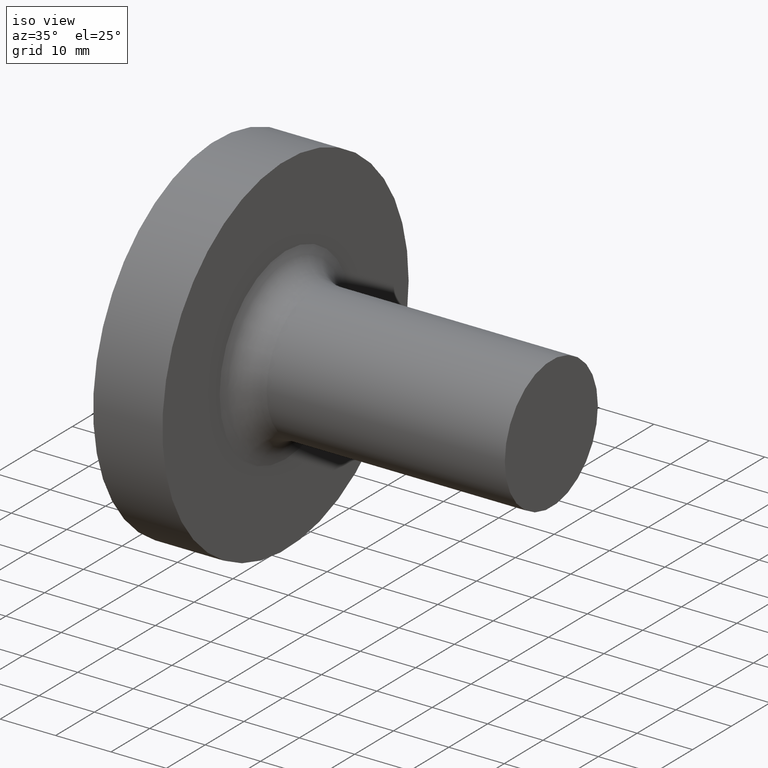
[diagram: clean part render]
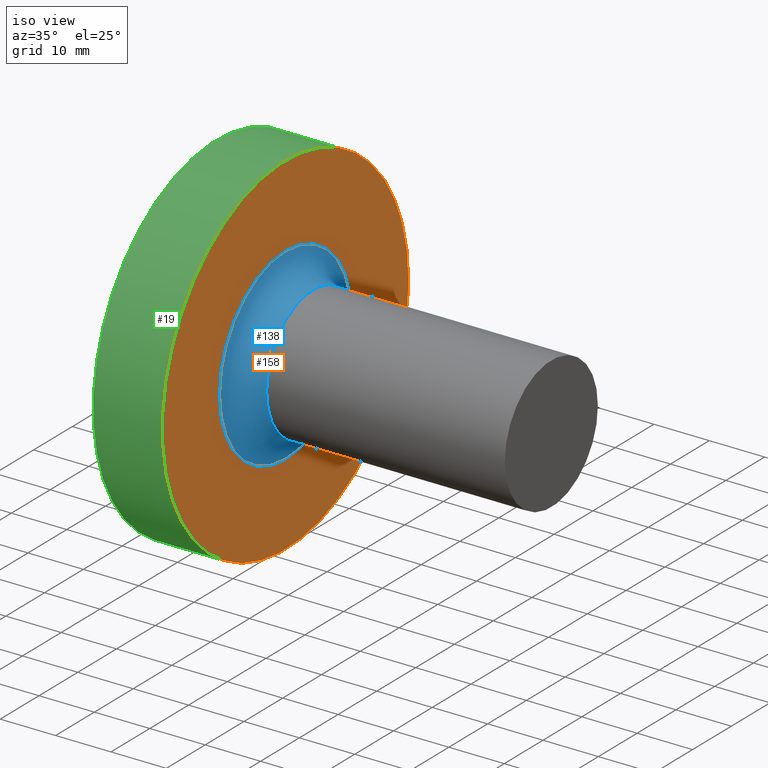
[diagram: same view with three faces highlighted in distinct colors, each labeled with its STEP entity id]
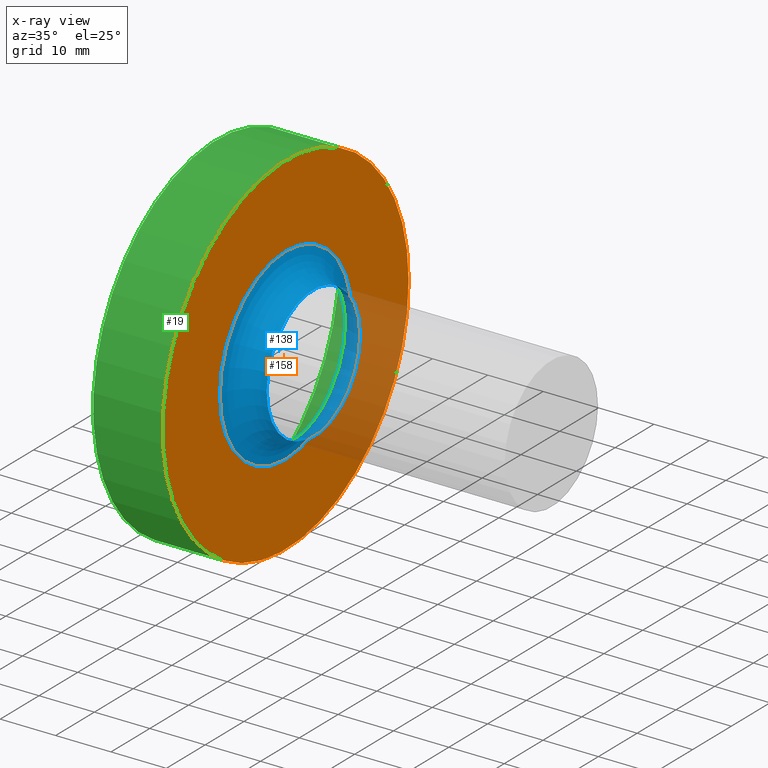
[diagram: x-ray of the same camera — body ghosted, the three highlighted faces saturated]
A machine part, iso view with three faces highlighted in distinct colors.
The next image is the same camera in x-ray (body ghosted, the three faces saturated) — at least one of them is partly hidden behind the body in this view.
Their STEP definitions:

[orange] entity #158 — the highlighted planar face has unit normal (1, -0, -0).
#5 = EDGE_CURVE ( 'NONE', #102, #102, #63, .T. ) ;
#10 = CARTESIAN_POINT ( 'NONE',  ( 12.49999999999999645, -8.855916935982917436E-16, 0.0000000000000000000 ) ) ;
#26 = AXIS2_PLACEMENT_3D ( 'NONE', #10, #162, #86 ) ;
#37 = ORIENTED_EDGE ( 'NONE', *, *, #5, .T. ) ;
#42 = ORIENTED_EDGE ( 'NONE', *, *, #70, .F. ) ;
#48 = EDGE_LOOP ( 'NONE', ( #42 ) ) ;
#61 = DIRECTION ( 'NONE',  ( 1.020425574104004122E-16, 1.000000000000000000, 0.0000000000000000000 ) ) ;
#63 = CIRCLE ( 'NONE', #26, 31.75000000000000711 ) ;
#70 = EDGE_CURVE ( 'NONE', #170, #170, #163, .T. ) ;
#76 = FACE_BOUND ( 'NONE', #48, .T. ) ;
#77 = PLANE ( 'NONE',  #126 ) ;
#81 = AXIS2_PLACEMENT_3D ( 'NONE', #152, #115, #61 ) ;
#86 = DIRECTION ( 'NONE',  ( 5.463695987328525204E-17, 1.000000000000000000, 0.0000000000000000000 ) ) ;
#91 = DIRECTION ( 'NONE',  ( 7.084733548786341591E-17, 1.000000000000000000, 0.0000000000000000000 ) ) ;
#96 = CARTESIAN_POINT ( 'NONE',  ( 12.49999999999999822, 31.75000000000000711, 0.0000000000000000000 ) ) ;
#102 = VERTEX_POINT ( 'NONE', #96 ) ;
#109 = EDGE_LOOP ( 'NONE', ( #37 ) ) ;
#115 = DIRECTION ( 'NONE',  ( 1.000000000000000000, -7.084733548786341591E-17, -0.0000000000000000000 ) ) ;
#119 = DIRECTION ( 'NONE',  ( 1.000000000000000000, -7.084733548786341591E-17, -0.0000000000000000000 ) ) ;
#125 = FACE_OUTER_BOUND ( 'NONE', #109, .T. ) ;
#126 = AXIS2_PLACEMENT_3D ( 'NONE', #179, #119, #91 ) ;
#152 = CARTESIAN_POINT ( 'NONE',  ( 12.49999999999999645, -8.855916935982917436E-16, 0.0000000000000000000 ) ) ;
#158 = ADVANCED_FACE ( 'NONE', ( #125, #76 ), #77, .T. ) ;
#162 = DIRECTION ( 'NONE',  ( 1.000000000000000000, -7.084733548786341591E-17, -0.0000000000000000000 ) ) ;
#163 = CIRCLE ( 'NONE', #81, 17.00000000000000000 ) ;
#170 = VERTEX_POINT ( 'NONE', #185 ) ;
#179 = CARTESIAN_POINT ( 'NONE',  ( 12.50000000000000000, 31.75000000000000000, 0.0000000000000000000 ) ) ;
#185 = CARTESIAN_POINT ( 'NONE',  ( 12.49999999999999822, 17.00000000000000000, 0.0000000000000000000 ) ) ;

[blue] entity #138 — the highlighted toroidal blend (fillet) surface has major radius 17 mm and minor (blend) radius 5 mm.
#12 = TOROIDAL_SURFACE ( 'NONE', #135, 17.00000000000000000, 5.000000000000000000 ) ;
#13 = EDGE_LOOP ( 'NONE', ( #122 ) ) ;
#15 = CIRCLE ( 'NONE', #87, 12.00000000000000000 ) ;
#28 = VERTEX_POINT ( 'NONE', #157 ) ;
#35 = CARTESIAN_POINT ( 'NONE',  ( 17.50000000000000000, 0.0000000000000000000, 0.0000000000000000000 ) ) ;
#50 = DIRECTION ( 'NONE',  ( 1.000000000000000000, -7.084733548786341591E-17, -0.0000000000000000000 ) ) ;
#59 = FACE_OUTER_BOUND ( 'NONE', #161, .T. ) ;
#61 = DIRECTION ( 'NONE',  ( 1.020425574104004122E-16, 1.000000000000000000, 0.0000000000000000000 ) ) ;
#70 = EDGE_CURVE ( 'NONE', #170, #170, #163, .T. ) ;
#73 = EDGE_CURVE ( 'NONE', #28, #28, #15, .T. ) ;
#81 = AXIS2_PLACEMENT_3D ( 'NONE', #152, #115, #61 ) ;
#87 = AXIS2_PLACEMENT_3D ( 'NONE', #193, #50, #153 ) ;
#115 = DIRECTION ( 'NONE',  ( 1.000000000000000000, -7.084733548786341591E-17, -0.0000000000000000000 ) ) ;
#118 = FACE_OUTER_BOUND ( 'NONE', #13, .T. ) ;
#122 = ORIENTED_EDGE ( 'NONE', *, *, #70, .T. ) ;
#132 = DIRECTION ( 'NONE',  ( 7.084733548786341591E-17, 1.000000000000000000, 0.0000000000000000000 ) ) ;
#135 = AXIS2_PLACEMENT_3D ( 'NONE', #35, #166, #132 ) ;
#138 = ADVANCED_FACE ( 'NONE', ( #118, #59 ), #12, .F. ) ;
#152 = CARTESIAN_POINT ( 'NONE',  ( 12.49999999999999645, -8.855916935982917436E-16, 0.0000000000000000000 ) ) ;
#153 = DIRECTION ( 'NONE',  ( 0.0000000000000000000, 1.000000000000000000, 0.0000000000000000000 ) ) ;
#154 = ORIENTED_EDGE ( 'NONE', *, *, #73, .F. ) ;
#157 = CARTESIAN_POINT ( 'NONE',  ( 17.50000000000000000, 11.99999999999999822, 0.0000000000000000000 ) ) ;
#161 = EDGE_LOOP ( 'NONE', ( #154 ) ) ;
#163 = CIRCLE ( 'NONE', #81, 17.00000000000000000 ) ;
#166 = DIRECTION ( 'NONE',  ( 1.000000000000000000, -7.084733548786341591E-17, -0.0000000000000000000 ) ) ;
#170 = VERTEX_POINT ( 'NONE', #185 ) ;
#185 = CARTESIAN_POINT ( 'NONE',  ( 12.49999999999999822, 17.00000000000000000, 0.0000000000000000000 ) ) ;
#193 = CARTESIAN_POINT ( 'NONE',  ( 17.50000000000000000, -1.239828371037609427E-15, 0.0000000000000000000 ) ) ;

[green] entity #19 — the highlighted cylindrical surface (bore or boss wall) has radius 31.75 mm, axis along (1, -0, -0).
#5 = EDGE_CURVE ( 'NONE', #102, #102, #63, .T. ) ;
#10 = CARTESIAN_POINT ( 'NONE',  ( 12.49999999999999645, -8.855916935982917436E-16, 0.0000000000000000000 ) ) ;
#19 = ADVANCED_FACE ( 'NONE', ( #106, #85 ), #47, .T. ) ;
#26 = AXIS2_PLACEMENT_3D ( 'NONE', #10, #162, #86 ) ;
#29 = DIRECTION ( 'NONE',  ( 1.000000000000000000, -7.084733548786341591E-17, -0.0000000000000000000 ) ) ;
#36 = CARTESIAN_POINT ( 'NONE',  ( 0.0000000000000000000, 7.703719777548943412E-31, 0.0000000000000000000 ) ) ;
#40 = CARTESIAN_POINT ( 'NONE',  ( 2.249402901739663612E-15, 31.75000000000000000, 0.0000000000000000000 ) ) ;
#44 = DIRECTION ( 'NONE',  ( 0.0000000000000000000, 1.000000000000000000, 0.0000000000000000000 ) ) ;
#47 = CYLINDRICAL_SURFACE ( 'NONE', #78, 31.75000000000000000 ) ;
#60 = ORIENTED_EDGE ( 'NONE', *, *, #5, .F. ) ;
#63 = CIRCLE ( 'NONE', #26, 31.75000000000000711 ) ;
#72 = CARTESIAN_POINT ( 'NONE',  ( 60.50000000000000000, -4.286263797015735707E-15, 0.0000000000000000000 ) ) ;
#78 = AXIS2_PLACEMENT_3D ( 'NONE', #72, #29, #44 ) ;
#85 = FACE_OUTER_BOUND ( 'NONE', #114, .T. ) ;
#86 = DIRECTION ( 'NONE',  ( 5.463695987328525204E-17, 1.000000000000000000, 0.0000000000000000000 ) ) ;
#96 = CARTESIAN_POINT ( 'NONE',  ( 12.49999999999999822, 31.75000000000000711, 0.0000000000000000000 ) ) ;
#102 = VERTEX_POINT ( 'NONE', #96 ) ;
#106 = FACE_OUTER_BOUND ( 'NONE', #151, .T. ) ;
#114 = EDGE_LOOP ( 'NONE', ( #60 ) ) ;
#123 = VERTEX_POINT ( 'NONE', #40 ) ;
#136 = DIRECTION ( 'NONE',  ( 1.000000000000000000, -7.084733548786341591E-17, -0.0000000000000000000 ) ) ;
#142 = ORIENTED_EDGE ( 'NONE', *, *, #174, .T. ) ;
#147 = AXIS2_PLACEMENT_3D ( 'NONE', #36, #136, #156 ) ;
#151 = EDGE_LOOP ( 'NONE', ( #142 ) ) ;
#156 = DIRECTION ( 'NONE',  ( 7.084733548786341591E-17, 1.000000000000000000, 0.0000000000000000000 ) ) ;
#162 = DIRECTION ( 'NONE',  ( 1.000000000000000000, -7.084733548786341591E-17, -0.0000000000000000000 ) ) ;
#173 = CIRCLE ( 'NONE', #147, 31.75000000000000000 ) ;
#174 = EDGE_CURVE ( 'NONE', #123, #123, #173, .T. ) ;